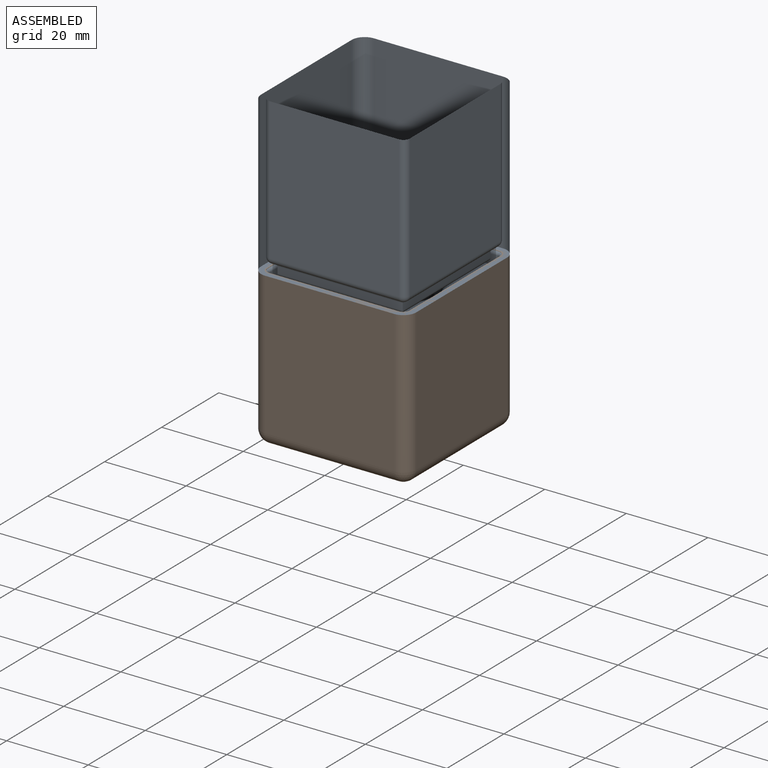
[diagram: assembled view]
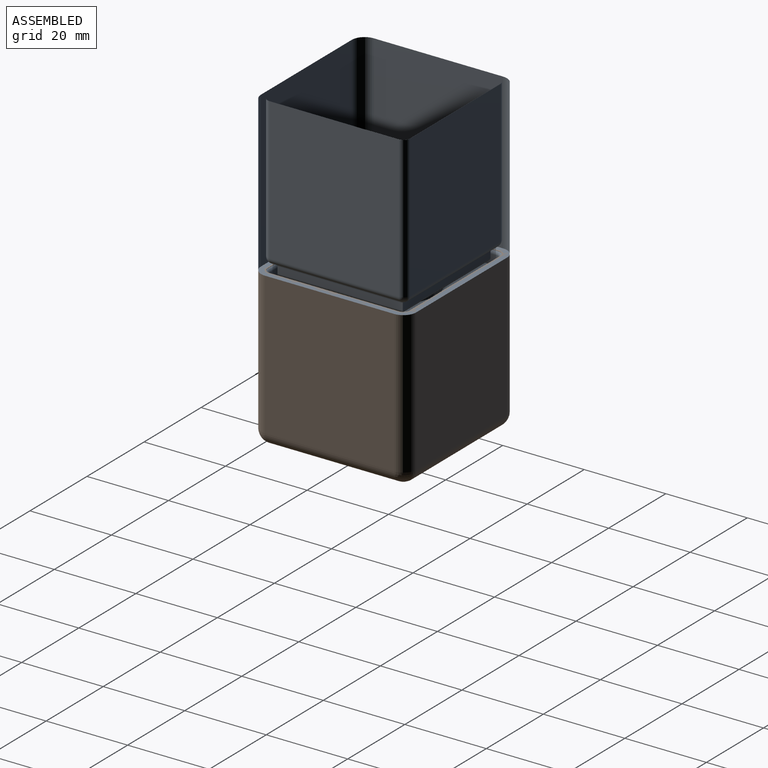
[diagram: assembled view, second angle]
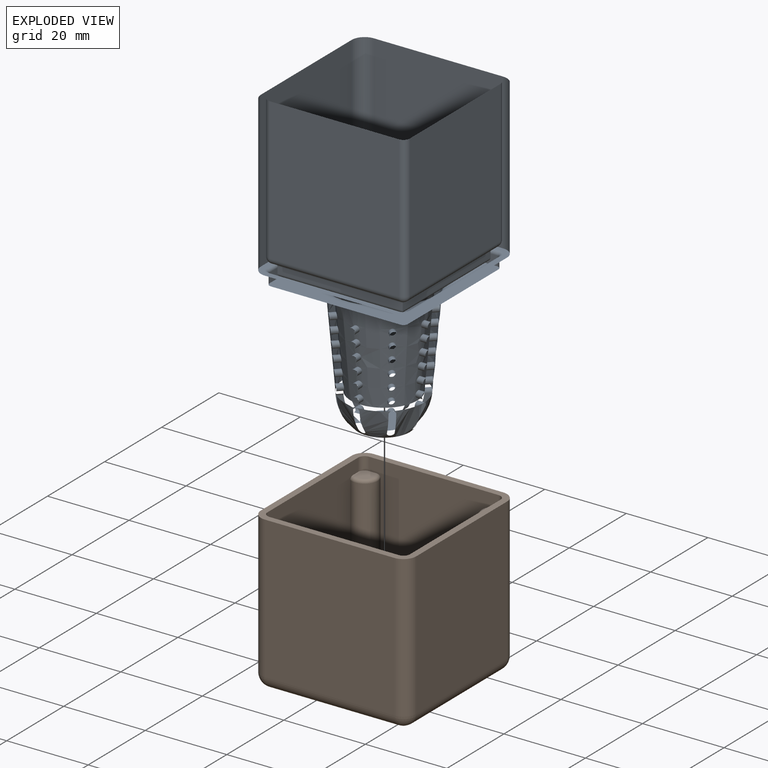
[diagram: exploded view]
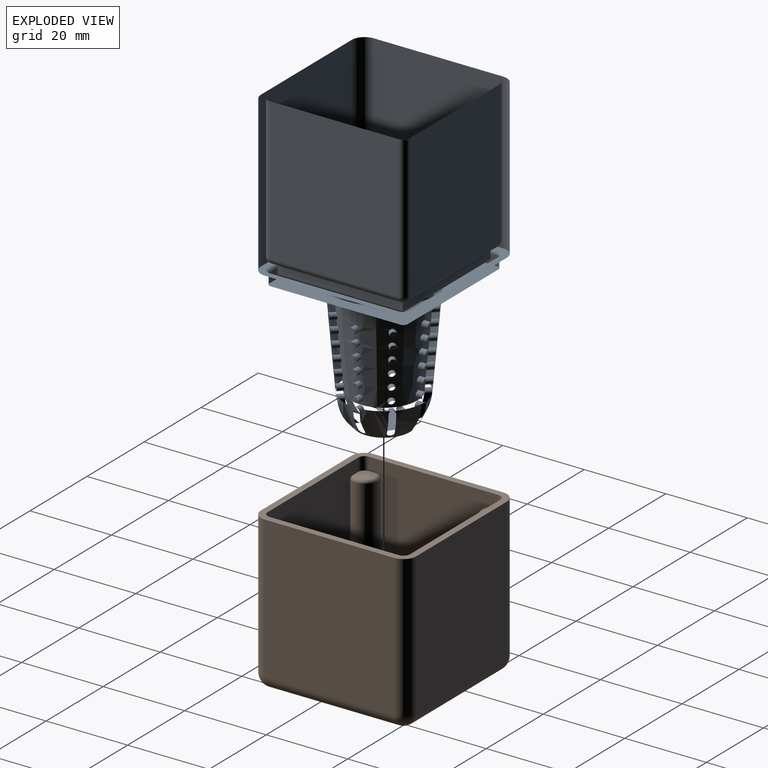
[diagram: exploded view, second angle]
ASSEMBLY  parts=2 mates=2
PART A: 163 faces, bbox 40.4x40.4x77.2 mm
  f0: sphere r=8.18mm, area 381.8mm2, adj f1,f2,f3,f4,f5,f6,f7,f8
  f1: cone r=10.41mm half-angle=5deg, axis (0,0,1), area 1210.3mm2, adj f0,f35,f36,f37,f38,f39,f40,f41
  f2: cylinder r=0.79mm len=3.23mm, axis (-0.71,-0.71,0), area 6.3mm2, adj f0,f3,f5,f161
  f3: plane 5.67x3.48mm, normal (0.71,-0.71,0), area 8.8mm2, adj f0,f2,f4,f161
  f4: cylinder r=0.79mm len=2.3mm, axis (-0.71,-0.71,0), area 4mm2, adj f0,f3,f5,f161
  f5: plane 5.78x3.59mm, normal (-0.71,0.71,0), area 8.8mm2, adj f0,f2,f4,f161
  f6: cylinder r=0.79mm len=2.98mm, axis (0,-1,0), area 6.3mm2, adj f0,f7,f9,f161
  f7: plane 5.01x3.99mm, normal (1,0,0), area 8.8mm2, adj f0,f6,f8,f161
  f8: cylinder r=0.79mm len=1.67mm, axis (0,-1,0), area 4mm2, adj f0,f7,f9,f161
  f9: plane 5.01x3.99mm, normal (-1,0,0), area 8.8mm2, adj f0,f6,f8,f161
  f10: cylinder r=0.79mm len=3.23mm, axis (-0.71,0.71,0), area 5.6mm2, adj f0,f11,f13,f161
  f11: plane 5.67x3.48mm, normal (0.71,0.71,0), area 8.8mm2, adj f0,f10,f12,f161
  f12: cylinder r=0.79mm len=2.3mm, axis (0.71,-0.71,0), area 4.1mm2, adj f0,f11,f13,f161
  f13: plane 5.78x3.59mm, normal (-0.71,-0.71,0), area 8.8mm2, adj f0,f10,f12,f161
  f14: cylinder r=0.79mm len=2.98mm, axis (-1,0,0), area 5.6mm2, adj f0,f15,f17,f161
  f15: plane 5.01x3.99mm, normal (0,1,0), area 8.8mm2, adj f0,f14,f16,f161
  f16: cylinder r=0.79mm len=1.67mm, axis (1,0,0), area 4.1mm2, adj f0,f15,f17,f161
  f17: plane 5.01x3.99mm, normal (0,-1,0), area 8.8mm2, adj f0,f14,f16,f161
  f18: cylinder r=0.79mm len=3.23mm, axis (-0.71,-0.71,0), area 5.6mm2, adj f0,f19,f21,f161
  f19: plane 5.78x3.59mm, normal (-0.71,0.71,0), area 8.8mm2, adj f0,f18,f20,f161
  f20: cylinder r=0.79mm len=2.3mm, axis (0.71,0.71,0), area 4.1mm2, adj f0,f19,f21,f161
  f21: plane 5.67x3.48mm, normal (0.71,-0.71,0), area 8.8mm2, adj f0,f18,f20,f161
  f22: cylinder r=0.79mm len=2.98mm, axis (0,-1,0), area 5.6mm2, adj f0,f23,f25,f161
  f23: plane 5.01x3.99mm, normal (-1,0,0), area 8.8mm2, adj f0,f22,f24,f161
  f24: cylinder r=0.79mm len=1.67mm, axis (0,1,0), area 4mm2, adj f0,f23,f25,f161
  f25: plane 5.01x3.99mm, normal (1,0,0), area 8.8mm2, adj f0,f22,f24,f161
  f26: cylinder r=0.79mm len=3.23mm, axis (-0.71,0.71,0), area 6.3mm2, adj f0,f27,f29,f161
  f27: plane 5.67x3.48mm, normal (-0.71,-0.71,0), area 8.8mm2, adj f0,f26,f28,f161
  f28: cylinder r=0.79mm len=2.3mm, axis (-0.71,0.71,0), area 4mm2, adj f0,f27,f29,f161
  f29: plane 5.78x3.59mm, normal (0.71,0.71,0), area 8.8mm2, adj f0,f26,f28,f161
  f30: cylinder r=0.79mm len=2.98mm, axis (-1,0,0), area 6.3mm2, adj f0,f31,f33,f161
  f31: plane 5.01x3.99mm, normal (0,-1,0), area 8.8mm2, adj f0,f30,f32,f161
  f32: cylinder r=0.79mm len=1.67mm, axis (-1,0,0), area 4.1mm2, adj f0,f31,f33,f161
  f33: plane 5.01x3.99mm, normal (0,1,0), area 8.8mm2, adj f0,f30,f32,f161
  f34: plane 9.69x9.69mm, normal (0,0,1), area 73.7mm2, adj f0
  f35: cylinder r=0.79mm len=1.73mm, axis (-1,0,0), area 8mm2, adj f1,f84
  f36: cylinder r=0.79mm len=1.73mm, axis (-1,0,0), area 8mm2, adj f1,f84
  f37: cylinder r=0.79mm len=1.73mm, axis (-1,0,0), area 8mm2, adj f1,f84
  f38: cylinder r=0.79mm len=1.73mm, axis (-1,0,0), area 8mm2, adj f1,f84
  f39: cylinder r=0.79mm len=1.73mm, axis (-1,0,0), area 8mm2, adj f1,f84
  f40: cylinder r=0.79mm len=1.73mm, axis (-1,0,0), area 8mm2, adj f1,f84
  f41: torus R=14.9mm, axis (0,0,1), area 530.7mm2, adj f1,f85,f86,f87,f88,f89,f90,f91
  f42: cylinder r=0.79mm len=2.35mm, axis (0.71,-0.71,0), area 8mm2, adj f1,f84
  f43: cylinder r=0.79mm len=2.35mm, axis (0.71,-0.71,0), area 8mm2, adj f1,f84
  f44: cylinder r=0.79mm len=2.26mm, axis (0.71,-0.71,0), area 8mm2, adj f1,f84
  f45: cylinder r=0.79mm len=2.35mm, axis (0.71,-0.71,0), area 8mm2, adj f1,f84
  f46: cylinder r=0.79mm len=2.29mm, axis (0.71,-0.71,0), area 8.1mm2, adj f1,f84
  f47: cylinder r=0.79mm len=2.26mm, axis (0.71,-0.71,0), area 8mm2, adj f1,f84
  f48: cylinder r=0.79mm len=1.73mm, axis (1,0,0), area 8.2mm2, adj f1,f84
  f49: cylinder r=0.79mm len=1.73mm, axis (1,0,0), area 8.2mm2, adj f1,f84
  f50: cylinder r=0.79mm len=1.73mm, axis (1,0,0), area 7.9mm2, adj f1,f84
  f51: cylinder r=0.79mm len=1.73mm, axis (1,0,0), area 8.2mm2, adj f1,f84
  f52: cylinder r=0.79mm len=1.73mm, axis (1,0,0), area 8.2mm2, adj f1,f84
  f53: cylinder r=0.79mm len=1.73mm, axis (1,0,0), area 7.9mm2, adj f1,f84
  f54: cylinder r=0.79mm len=2.35mm, axis (0.71,0.71,0), area 8mm2, adj f1,f84
  f55: cylinder r=0.79mm len=2.35mm, axis (0.71,0.71,0), area 8mm2, adj f1,f84
  f56: cylinder r=0.79mm len=2.25mm, axis (0.71,0.71,0), area 7.9mm2, adj f1,f84
  f57: cylinder r=0.79mm len=2.35mm, axis (0.71,0.71,0), area 8mm2, adj f1,f84
  f58: cylinder r=0.79mm len=2.35mm, axis (0.71,0.71,0), area 8mm2, adj f1,f84
  f59: cylinder r=0.79mm len=2.35mm, axis (0.71,0.71,0), area 8mm2, adj f1,f84
  f60: cylinder r=0.79mm len=1.73mm, axis (0,1,0), area 8mm2, adj f1,f84
  f61: cylinder r=0.79mm len=1.73mm, axis (0,1,0), area 8mm2, adj f1,f84
  f62: cylinder r=0.79mm len=1.73mm, axis (0,1,0), area 8mm2, adj f1,f84
  f63: cylinder r=0.79mm len=1.73mm, axis (0,1,0), area 8mm2, adj f1,f84
  f64: cylinder r=0.79mm len=1.73mm, axis (0,1,0), area 8mm2, adj f1,f84
  f65: cylinder r=0.79mm len=1.73mm, axis (0,1,0), area 8mm2, adj f1,f84
  f66: cylinder r=0.79mm len=2.35mm, axis (-0.71,0.71,0), area 8mm2, adj f1,f84
  f67: cylinder r=0.79mm len=2.35mm, axis (-0.71,0.71,0), area 8mm2, adj f1,f84
  f68: cylinder r=0.79mm len=2.26mm, axis (-0.71,0.71,0), area 8mm2, adj f1,f84
  f69: cylinder r=0.79mm len=2.35mm, axis (-0.71,0.71,0), area 8mm2, adj f1,f84
  f70: cylinder r=0.79mm len=2.29mm, axis (-0.71,0.71,0), area 8.1mm2, adj f1,f84
  f71: cylinder r=0.79mm len=2.26mm, axis (-0.71,0.71,0), area 8mm2, adj f1,f84
  f72: cylinder r=0.79mm len=2.35mm, axis (-0.71,-0.71,0), area 8mm2, adj f1,f84
  f73: cylinder r=0.79mm len=2.35mm, axis (-0.71,-0.71,0), area 8mm2, adj f1,f84
  f74: cylinder r=0.79mm len=2.35mm, axis (-0.71,-0.71,0), area 8mm2, adj f1,f84
  f75: cylinder r=0.79mm len=2.25mm, axis (-0.71,-0.71,0), area 7.9mm2, adj f1,f84
  f76: cylinder r=0.79mm len=2.25mm, axis (-0.71,-0.71,0), area 7.9mm2, adj f1,f84
  f77: cylinder r=0.79mm len=2.25mm, axis (-0.71,-0.71,0), area 7.9mm2, adj f1,f84
  f78: cylinder r=0.79mm len=1.73mm, axis (0,-1,0), area 8mm2, adj f1,f84
  f79: cylinder r=0.79mm len=1.73mm, axis (0,-1,0), area 8mm2, adj f1,f84
  f80: cylinder r=0.79mm len=1.73mm, axis (0,-1,0), area 8mm2, adj f1,f84
  f81: cylinder r=0.79mm len=1.73mm, axis (0,-1,0), area 8mm2, adj f1,f84
  f82: cylinder r=0.79mm len=1.73mm, axis (0,-1,0), area 8mm2, adj f1,f84
  f83: cylinder r=0.79mm len=1.73mm, axis (0,-1,0), area 8mm2, adj f1,f84
  f84: cone r=11.99mm half-angle=5deg, axis (0,0,1), area 1431.3mm2, adj f35,f36,f37,f38,f39,f40,f42,f43
  f85: plane 11.5x11.5mm, normal (0,0,-1), area 39.5mm2, adj f41,f94,f95
  f86: bspline ~9.57x0.87mm, area 7.5mm2, adj f41,f95,f96,f97
  f87: plane 11.5x11.5mm, normal (0,0,-1), area 39.5mm2, adj f41,f96,f98
  f88: bspline ~9.57x0.87mm, area 7.5mm2, adj f41,f98,f99,f100
  f89: plane 11.5x11.5mm, normal (0,0,-1), area 39.5mm2, adj f41,f99,f101
  f90: bspline ~9.57x0.87mm, area 7.5mm2, adj f41,f101,f102,f103
  f91: plane 11.5x11.5mm, normal (0,0,-1), area 39.5mm2, adj f41,f102,f104
  f92: bspline ~8.3x0.87mm, area 7.5mm2, adj f41,f94,f104,f105
  f93: torus R=14.9mm, axis (0,0,1), area 383.3mm2, adj f84,f106
  f94: cylinder r=0.79mm len=12.29mm, axis (-1,0,0), area 14.8mm2, adj f85,f92,f95,f105
  f95: cylinder r=0.79mm len=12.29mm, axis (0,-1,0), area 14.8mm2, adj f85,f86,f94,f97
  f96: cylinder r=0.79mm len=12.29mm, axis (0,-1,0), area 14.8mm2, adj f86,f87,f97,f98
  f97: plane 30.75x1.62mm, normal (1,0,0), area 49.4mm2, adj f86,f95,f96,f100,f105,f107
  f98: cylinder r=0.79mm len=12.29mm, axis (1,0,0), area 14.8mm2, adj f87,f88,f96,f100
  f99: cylinder r=0.79mm len=12.29mm, axis (1,0,0), area 14.8mm2, adj f88,f89,f100,f101
  f100: plane 30.75x1.62mm, normal (0,1,0), area 49.4mm2, adj f88,f97,f98,f99,f103,f108
  f101: cylinder r=0.79mm len=12.29mm, axis (0,1,0), area 14.8mm2, adj f89,f90,f99,f103
  f102: cylinder r=0.79mm len=12.29mm, axis (0,1,0), area 14.8mm2, adj f90,f91,f103,f104
  f103: plane 30.75x1.62mm, normal (-1,0,0), area 49.4mm2, adj f90,f100,f101,f102,f105,f109
  f104: cylinder r=0.79mm len=12.29mm, axis (-1,0,0), area 14.8mm2, adj f91,f92,f102,f105
  f105: plane 30.75x1.62mm, normal (0,-1,0), area 49.4mm2, adj f92,f94,f97,f103,f104,f110
  f106: plane 33.93x33.93mm, normal (0,0,1), area 452.1mm2, adj f93,f111,f112,f113,f114,f115,f116,f117
  f107: cylinder r=0.79mm len=31.75mm, axis (0,-1,0), area 35.9mm2, adj f97,f108,f110,f119,f120,f121
  f108: cylinder r=0.79mm len=31.75mm, axis (1,0,0), area 35.9mm2, adj f100,f107,f109,f122,f123,f124
  f109: cylinder r=0.79mm len=31.75mm, axis (0,1,0), area 35.9mm2, adj f103,f108,f110,f125,f126,f127
  f110: cylinder r=0.79mm len=31.75mm, axis (-1,0,0), area 35.9mm2, adj f105,f107,f109,f128,f129,f130
  f111: cylinder r=1.09mm len=2.38mm, axis (0,0,-1), area 4.1mm2, adj f106,f112,f118,f131
  f112: plane 31.75x2.38mm, normal (0,-1,0), area 75.6mm2, adj f106,f111,f113,f132
  f113: cylinder r=1.09mm len=2.38mm, axis (0,0,-1), area 4.1mm2, adj f106,f112,f114,f133
  f114: plane 31.75x2.38mm, normal (-1,0,0), area 75.6mm2, adj f106,f113,f115,f134
  f115: cylinder r=1.09mm len=2.38mm, axis (0,0,-1), area 4.1mm2, adj f106,f114,f116,f135
  f116: plane 31.75x2.38mm, normal (0,1,0), area 75.6mm2, adj f106,f115,f117,f136
  f117: cylinder r=1.09mm len=2.38mm, axis (0,0,-1), area 4.1mm2, adj f106,f116,f118,f137
  f118: plane 31.75x2.38mm, normal (1,0,0), area 75.6mm2, adj f106,f111,f117,f138
  f119: torus R=2.36mm, axis (1,0,0), area 0mm2, adj f107,f129,f139
  f120: cylinder r=1.59mm len=31.75mm, axis (0,-1,0), area 72.9mm2, adj f107,f139,f140,f141
  f121: torus R=2.36mm, axis (1,0,0), area 0mm2, adj f107,f122,f140
  f122: torus R=2.36mm, axis (0,-1,0), area 0mm2, adj f108,f121,f140
  f123: cylinder r=1.59mm len=31.75mm, axis (1,0,0), area 72.9mm2, adj f108,f140,f142,f143
  f124: torus R=2.36mm, axis (0,-1,0), area 0mm2, adj f108,f125,f142
  f125: torus R=2.36mm, axis (1,0,0), area 0mm2, adj f109,f124,f142
  f126: cylinder r=1.59mm len=31.75mm, axis (0,1,0), area 72.9mm2, adj f109,f142,f144,f145
  f127: torus R=2.36mm, axis (1,0,0), area 0mm2, adj f109,f130,f144
  f128: cylinder r=1.59mm len=31.75mm, axis (-1,0,0), area 72.9mm2, adj f110,f139,f144,f146
  f129: torus R=2.36mm, axis (0,-1,0), area 0mm2, adj f110,f119,f139
  f130: torus R=2.36mm, axis (0,-1,0), area 0mm2, adj f110,f127,f144
  f131: torus R=1.88mm, axis (0,0,1), area 2.7mm2, adj f111,f132,f138,f147
  f132: cylinder r=0.79mm len=31.75mm, axis (1,0,0), area 39.6mm2, adj f112,f131,f133,f147
  f133: torus R=1.88mm, axis (0,0,1), area 2.7mm2, adj f113,f132,f134,f147
  f134: cylinder r=0.79mm len=31.75mm, axis (0,-1,0), area 39.6mm2, adj f114,f133,f135,f147
  f135: torus R=1.88mm, axis (0,0,1), area 2.7mm2, adj f115,f134,f136,f147
  f136: cylinder r=0.79mm len=31.75mm, axis (-1,0,0), area 39.6mm2, adj f116,f135,f137,f147
  f137: torus R=1.88mm, axis (0,0,1), area 2.7mm2, adj f117,f136,f138,f147
  f138: cylinder r=0.79mm len=31.75mm, axis (0,1,0), area 39.6mm2, adj f118,f131,f137,f147
  f139: sphere r=1.59mm, area 3.9mm2, adj f119,f120,f128,f129,f148
  f140: sphere r=1.59mm, area 3.9mm2, adj f120,f121,f122,f123,f149
  f141: plane 34.93x31.75mm, normal (1,0,0), area 1108.9mm2, adj f120,f148,f149,f150
  f142: sphere r=1.59mm, area 3.9mm2, adj f123,f124,f125,f126,f151
  f143: plane 34.93x31.75mm, normal (0,1,0), area 1108.9mm2, adj f123,f149,f150,f151
  f144: sphere r=1.59mm, area 3.9mm2, adj f126,f127,f128,f130,f152
  f145: plane 34.93x31.75mm, normal (-1,0,0), area 1108.9mm2, adj f126,f150,f151,f152
  f146: plane 34.93x31.75mm, normal (0,-1,0), area 1108.9mm2, adj f128,f148,f150,f152
  f147: plane 38.1x38.1mm, normal (0,0,1), area 184.9mm2, adj f131,f132,f133,f134,f135,f136,f137,f138
  f148: cylinder r=1.59mm len=34.93mm, axis (0,0,-1), area 87.1mm2, adj f139,f141,f146,f150
  f149: cylinder r=1.59mm len=34.93mm, axis (0,0,-1), area 87.1mm2, adj f140,f141,f143,f150
  f150: plane 38.1x38.1mm, normal (0,0,-1), area 225.4mm2, adj f141,f143,f145,f146,f148,f149,f151,f152
  f151: cylinder r=1.59mm len=34.93mm, axis (0,0,-1), area 87.1mm2, adj f142,f143,f145,f150
  f152: cylinder r=1.59mm len=34.93mm, axis (0,0,-1), area 87.1mm2, adj f144,f145,f146,f150
  f153: plane 38.1x31.75mm, normal (-1,0,0), area 1209.7mm2, adj f147,f150,f154,f160
  f154: cylinder r=3.17mm len=38.1mm, axis (0,0,-1), area 190mm2, adj f147,f150,f153,f155
  f155: plane 38.1x31.75mm, normal (0,1,0), area 1209.7mm2, adj f147,f150,f154,f156
  f156: cylinder r=3.17mm len=38.1mm, axis (0,0,-1), area 190mm2, adj f147,f150,f155,f157
  f157: plane 38.1x31.75mm, normal (1,0,0), area 1209.7mm2, adj f147,f150,f156,f158
  f158: cylinder r=3.17mm len=38.1mm, axis (0,0,-1), area 190mm2, adj f147,f150,f157,f159
  f159: plane 38.1x31.75mm, normal (0,-1,0), area 1209.7mm2, adj f147,f150,f158,f160
  f160: cylinder r=3.17mm len=38.1mm, axis (0,0,-1), area 190mm2, adj f147,f150,f153,f159
  f161: sphere r=9.77mm, area 370.8mm2, adj f2,f3,f4,f5,f6,f7,f8,f9
  f162: plane 12.68x12.68mm, normal (0,0,-1), area 126.2mm2, adj f161
PART B: 75 faces, bbox 38.1x38.1x38.1 mm
  f0: plane 31.75x31.75mm, normal (0,0,-1), area 654.3mm2, adj f24,f25,f29,f30,f57,f61,f67,f71
  f1: plane 4.18x4.18mm, normal (0,0,-1), area 5mm2, adj f29,f30,f56
  f2: plane 4.18x4.18mm, normal (0,0,-1), area 5mm2, adj f25,f30,f62
  f3: plane 4.18x4.18mm, normal (0,0,-1), area 5mm2, adj f24,f25,f66
  f4: plane 4.18x4.18mm, normal (0,0,-1), area 5mm2, adj f24,f29,f72
  f5: cylinder r=1.59mm len=26.25mm, axis (1,0,0), area 64.4mm2, adj f7,f11,f39,f41
  f6: cylinder r=1.59mm len=26.25mm, axis (0,1,0), area 64.4mm2, adj f7,f8,f37,f41
  f7: plane 31.75x31.75mm, normal (0,0,1), area 976.4mm2, adj f5,f6,f12,f13,f35,f37,f39,f41
  f8: plane 34.93x31.75mm, normal (-1,0,0), area 934.6mm2, adj f6,f9,f16,f34,f37,f38,f41,f42
  f9: cylinder r=1.59mm len=3.18mm, axis (0,0,-1), area 7.9mm2, adj f8,f11,f16,f42
  f10: plane 34.93x31.75mm, normal (1,0,0), area 934.6mm2, adj f12,f15,f16,f33,f35,f36,f39,f40
  f11: plane 34.93x31.75mm, normal (0,1,0), area 934.6mm2, adj f5,f9,f16,f33,f39,f40,f41,f42
  f12: cylinder r=1.59mm len=26.25mm, axis (0,-1,0), area 64.4mm2, adj f7,f10,f35,f39
  f13: cylinder r=1.59mm len=26.25mm, axis (-1,0,0), area 64.4mm2, adj f7,f14,f35,f37
  f14: plane 34.93x31.75mm, normal (0,-1,0), area 934.6mm2, adj f13,f15,f16,f34,f35,f36,f37,f38
  f15: cylinder r=1.59mm len=3.18mm, axis (0,0,-1), area 7.9mm2, adj f10,f14,f16,f36
  f16: plane 38.1x38.1mm, normal (0,0,1), area 225.4mm2, adj f8,f9,f10,f11,f14,f15,f17,f18
  f17: plane 34.93x31.75mm, normal (0,1,0), area 1108.9mm2, adj f16,f26,f30,f32
  f18: plane 34.93x31.75mm, normal (-1,0,0), area 1108.9mm2, adj f16,f23,f29,f32
  f19: plane 34.93x31.75mm, normal (0,-1,0), area 1108.9mm2, adj f16,f21,f23,f24
  f20: plane 34.93x31.75mm, normal (1,0,0), area 1108.9mm2, adj f16,f21,f25,f26
  f21: cylinder r=3.17mm len=34.93mm, axis (0,0,-1), area 174.2mm2, adj f16,f19,f20,f22
  f22: sphere r=3.17mm, area 15.8mm2, adj f21,f24,f25
  f23: cylinder r=3.17mm len=34.93mm, axis (0,0,1), area 174.2mm2, adj f16,f18,f19,f27
  f24: cylinder r=3.17mm len=31.75mm, axis (1,0,0), area 158.1mm2, adj f0,f3,f4,f19,f22,f27,f65,f73
  f25: cylinder r=3.17mm len=31.75mm, axis (0,1,0), area 158.1mm2, adj f0,f2,f3,f20,f22,f28,f60,f68
  f26: cylinder r=3.17mm len=34.93mm, axis (0,0,1), area 174.2mm2, adj f16,f17,f20,f28
  f27: sphere r=3.17mm, area 15.8mm2, adj f23,f24,f29
  f28: sphere r=3.17mm, area 15.8mm2, adj f25,f26,f30
  f29: cylinder r=3.17mm len=31.75mm, axis (0,-1,0), area 158.1mm2, adj f0,f1,f4,f18,f27,f31,f58,f70
  f30: cylinder r=3.17mm len=31.75mm, axis (-1,0,0), area 158.1mm2, adj f0,f1,f2,f17,f28,f31,f55,f63
  f31: sphere r=3.17mm, area 15.8mm2, adj f29,f30,f32
  f32: cylinder r=3.17mm len=34.93mm, axis (0,0,-1), area 174.2mm2, adj f16,f17,f18,f31
  f33: cylinder r=1.59mm len=3.18mm, axis (0,0,1), area 7.9mm2, adj f10,f11,f16,f40
  f34: cylinder r=1.59mm len=3.18mm, axis (0,0,1), area 7.9mm2, adj f8,f14,f16,f38
  f35: cylinder r=3.17mm len=32.54mm, axis (0,0,1), area 269.3mm2, adj f7,f10,f12,f13,f14,f46
  f36: plane 3.97x3.97mm, normal (0,0,1), area 13.4mm2, adj f10,f14,f15,f46
  f37: cylinder r=3.17mm len=32.54mm, axis (0,0,1), area 269.3mm2, adj f6,f7,f8,f13,f14,f45
  f38: plane 3.97x3.97mm, normal (0,0,1), area 13.4mm2, adj f8,f14,f34,f45
  f39: cylinder r=3.17mm len=32.54mm, axis (0,0,1), area 269.3mm2, adj f5,f7,f10,f11,f12,f44
  f40: plane 3.97x3.97mm, normal (0,0,1), area 13.4mm2, adj f10,f11,f33,f44
  f41: cylinder r=3.17mm len=32.54mm, axis (0,0,1), area 269.3mm2, adj f5,f6,f7,f8,f11,f43
  f42: plane 3.97x3.97mm, normal (0,0,1), area 13.4mm2, adj f8,f9,f11,f43
  f43: torus R=2.38mm, axis (0,0,1), area 9.9mm2, adj f8,f11,f41,f42
  f44: torus R=2.38mm, axis (0,0,1), area 9.9mm2, adj f10,f11,f39,f40
  f45: torus R=2.38mm, axis (0,0,1), area 9.9mm2, adj f8,f14,f37,f38
  f46: torus R=2.38mm, axis (0,0,1), area 9.9mm2, adj f10,f14,f35,f36
  f47: cylinder r=4.76mm len=9.53mm, axis (0,0,-1), area 0.7mm2, adj f70,f71,f72,f73,f74
  f48: plane 8.73x8.73mm, normal (0,0,-1), area 59.9mm2, adj f74
  f49: cylinder r=4.76mm len=9.53mm, axis (0,0,-1), area 0.7mm2, adj f65,f66,f67,f68,f69
  f50: plane 8.73x8.73mm, normal (0,0,-1), area 59.9mm2, adj f69
  f51: cylinder r=4.76mm len=9.53mm, axis (0,0,-1), area 0.7mm2, adj f60,f61,f62,f63,f64
  f52: plane 8.73x8.73mm, normal (0,0,-1), area 59.9mm2, adj f64
  f53: cylinder r=4.76mm len=9.53mm, axis (0,0,-1), area 0.7mm2, adj f55,f56,f57,f58,f59
  f54: plane 8.73x8.73mm, normal (0,0,-1), area 59.9mm2, adj f59
  f55: bspline ~3.61x0.71mm, area 1.1mm2, adj f30,f53,f56,f57
  f56: torus R=5.16mm, axis (0,0,1), area 3.7mm2, adj f1,f53,f55,f58
  f57: torus R=5.16mm, axis (0,0,1), area 13.3mm2, adj f0,f53,f55,f58
  f58: bspline ~3.61x0.71mm, area 1.1mm2, adj f29,f53,f56,f57
  f59: torus R=4.37mm, axis (0,0,-1), area 18.1mm2, adj f53,f54
  f60: bspline ~3.61x0.71mm, area 1.1mm2, adj f25,f51,f61,f62
  f61: torus R=5.16mm, axis (0,0,1), area 13.3mm2, adj f0,f51,f60,f63
  f62: torus R=5.16mm, axis (0,0,1), area 3.7mm2, adj f2,f51,f60,f63
  f63: bspline ~3.61x0.71mm, area 1.1mm2, adj f30,f51,f61,f62
  f64: torus R=4.37mm, axis (0,0,-1), area 18.1mm2, adj f51,f52
  f65: bspline ~3.61x0.71mm, area 1.1mm2, adj f24,f49,f66,f67
  f66: torus R=5.16mm, axis (0,0,1), area 3.7mm2, adj f3,f49,f65,f68
  f67: torus R=5.16mm, axis (0,0,1), area 13.3mm2, adj f0,f49,f65,f68
  f68: bspline ~3.61x0.71mm, area 1.1mm2, adj f25,f49,f66,f67
  f69: torus R=4.37mm, axis (0,0,-1), area 18.1mm2, adj f49,f50
  f70: bspline ~3.61x0.71mm, area 1.1mm2, adj f29,f47,f71,f72
  f71: torus R=5.16mm, axis (0,0,1), area 13.3mm2, adj f0,f47,f70,f73
  f72: torus R=5.16mm, axis (0,0,1), area 3.7mm2, adj f4,f47,f70,f73
  f73: bspline ~3.61x0.71mm, area 1.1mm2, adj f24,f47,f71,f72
  f74: torus R=4.37mm, axis (0,0,-1), area 18.1mm2, adj f47,f48
PLACE A t=(-4.74,-19.24,-1.24)mm
PLACE B t=(-4.74,-19.24,-1.24)mm
MATE fastened A.f1 <-> B.f16  axis (0,0,-1) through (-13.33,-14.43,36.86)mm
MATE parallel A.f1 <-> B.f7  axis (0,0,-1) through (-13.33,-14.43,0.85)mm
